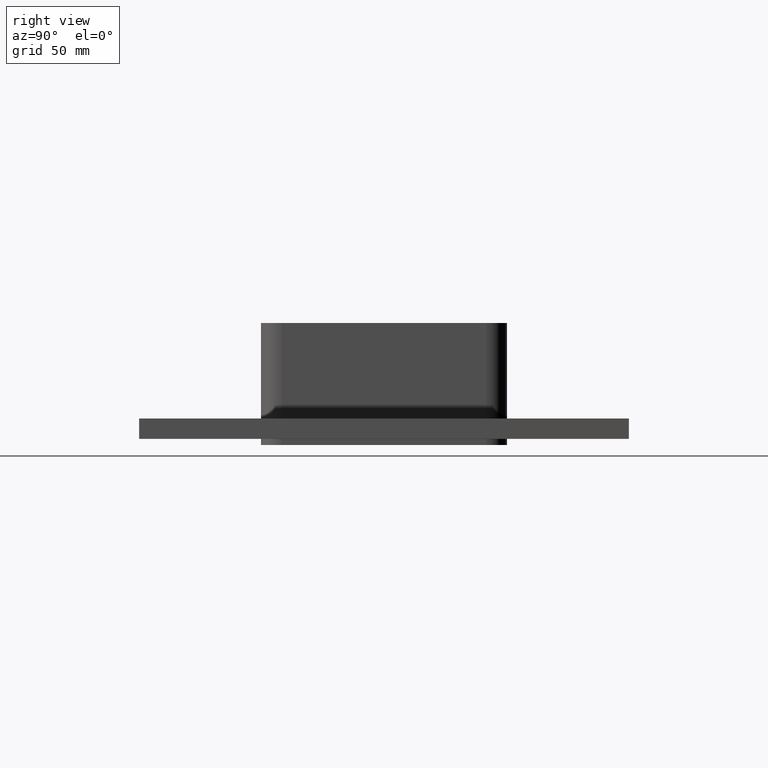
[diagram: clean part render]
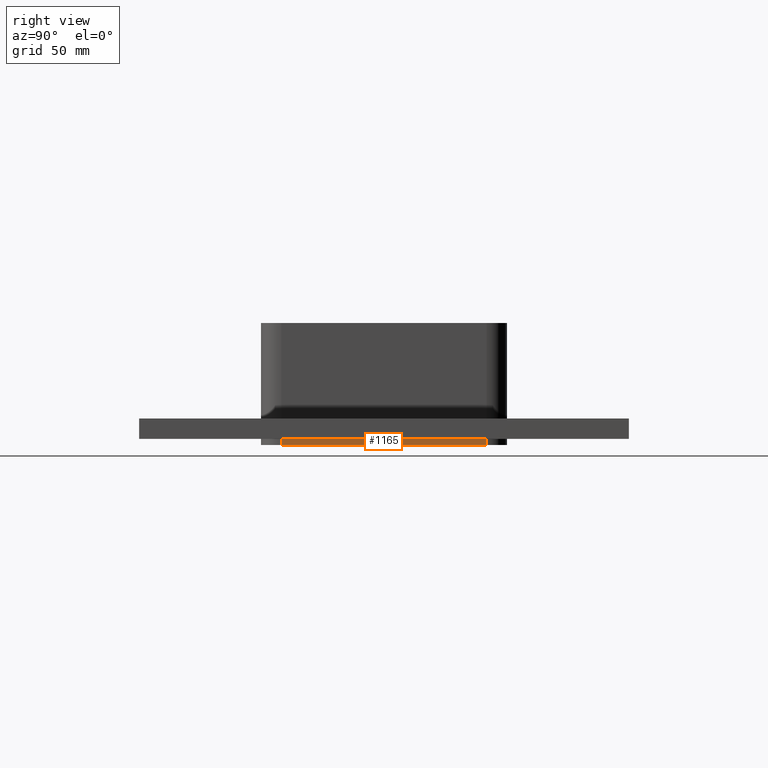
[diagram: same view with one face highlighted and labeled with its STEP entity id]
A machine part, right view. The second image highlights one B-rep face of the part: STEP entity #1165.
In plain terms, the highlighted planar face has unit normal (1, 0, 0).
Its self-contained STEP definition (entity closure, byte-faithful):
#559=CARTESIAN_POINT('',(70.25,50.500000000000007,-27.0));
#560=VERTEX_POINT('',#559);
#610=CARTESIAN_POINT('',(70.250000000000028,-50.500000000000007,-27.0));
#611=VERTEX_POINT('',#610);
#619=CARTESIAN_POINT('',(70.249999999999972,50.500000000000014,-27.0));
#620=DIRECTION('',(0.0,-1.0,0.0));
#621=VECTOR('',#620,101.00000000000003);
#622=LINE('',#619,#621);
#623=EDGE_CURVE('',#560,#611,#622,.T.);
#642=CARTESIAN_POINT('',(70.25,-50.499999999999972,-30.0));
#643=VERTEX_POINT('',#642);
#651=CARTESIAN_POINT('',(70.25,-50.499999999999972,-30.0));
#652=DIRECTION('',(0.0,0.0,1.0));
#653=VECTOR('',#652,3.0);
#654=LINE('',#651,#653);
#655=EDGE_CURVE('',#643,#611,#654,.T.);
#881=CARTESIAN_POINT('',(70.249999999999972,50.500000000000043,-30.0));
#882=VERTEX_POINT('',#881);
#890=CARTESIAN_POINT('',(70.249999999999986,50.500000000000043,-30.0));
#891=DIRECTION('',(0.0,-1.0,0.0));
#892=VECTOR('',#891,101.00000000000001);
#893=LINE('',#890,#892);
#894=EDGE_CURVE('',#882,#643,#893,.T.);
#1030=CARTESIAN_POINT('',(70.249999999999972,50.500000000000043,-27.0));
#1031=DIRECTION('',(0.0,0.0,-1.0));
#1032=VECTOR('',#1031,3.0);
#1033=LINE('',#1030,#1032);
#1034=EDGE_CURVE('',#560,#882,#1033,.T.);
#1154=CARTESIAN_POINT('',(70.25,-60.499999999999972,0.0));
#1155=DIRECTION('',(1.0,0.0,0.0));
#1156=DIRECTION('',(0.0,1.0,0.0));
#1157=AXIS2_PLACEMENT_3D('',#1154,#1155,#1156);
#1158=PLANE('',#1157);
#1159=ORIENTED_EDGE('',*,*,#623,.T.);
#1160=ORIENTED_EDGE('',*,*,#655,.F.);
#1161=ORIENTED_EDGE('',*,*,#894,.F.);
#1162=ORIENTED_EDGE('',*,*,#1034,.F.);
#1163=EDGE_LOOP('',(#1159,#1160,#1161,#1162));
#1164=FACE_OUTER_BOUND('',#1163,.T.);
#1165=ADVANCED_FACE('',(#1164),#1158,.T.);